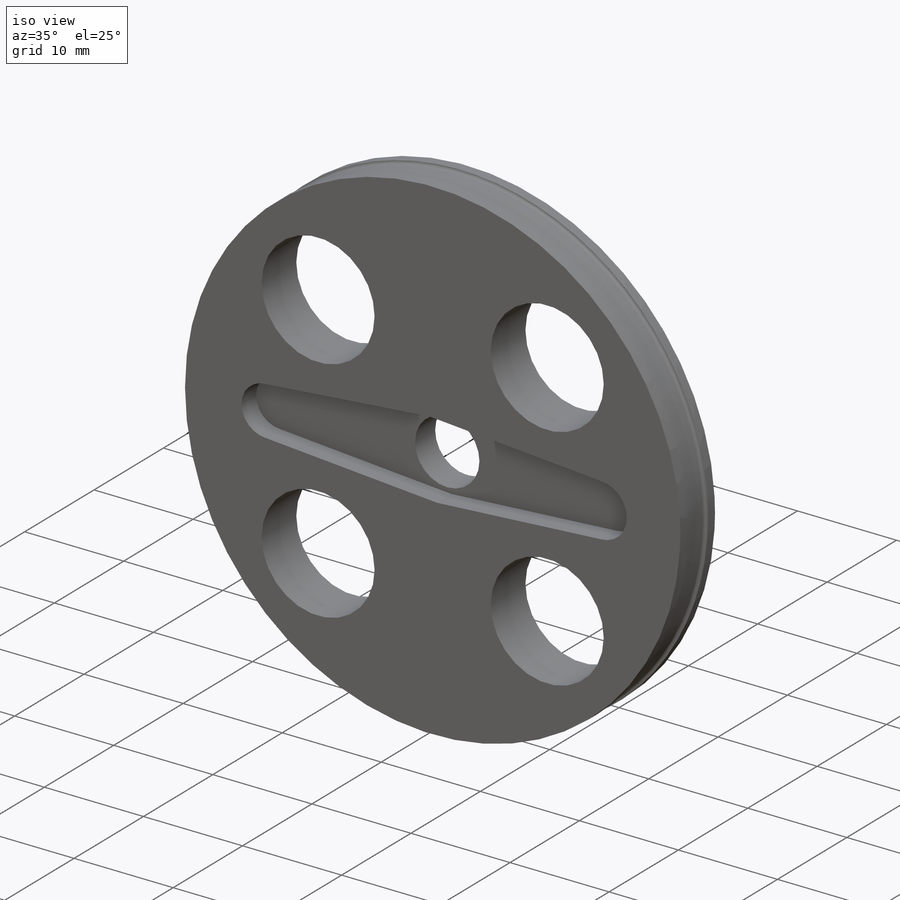
[diagram: iso view]
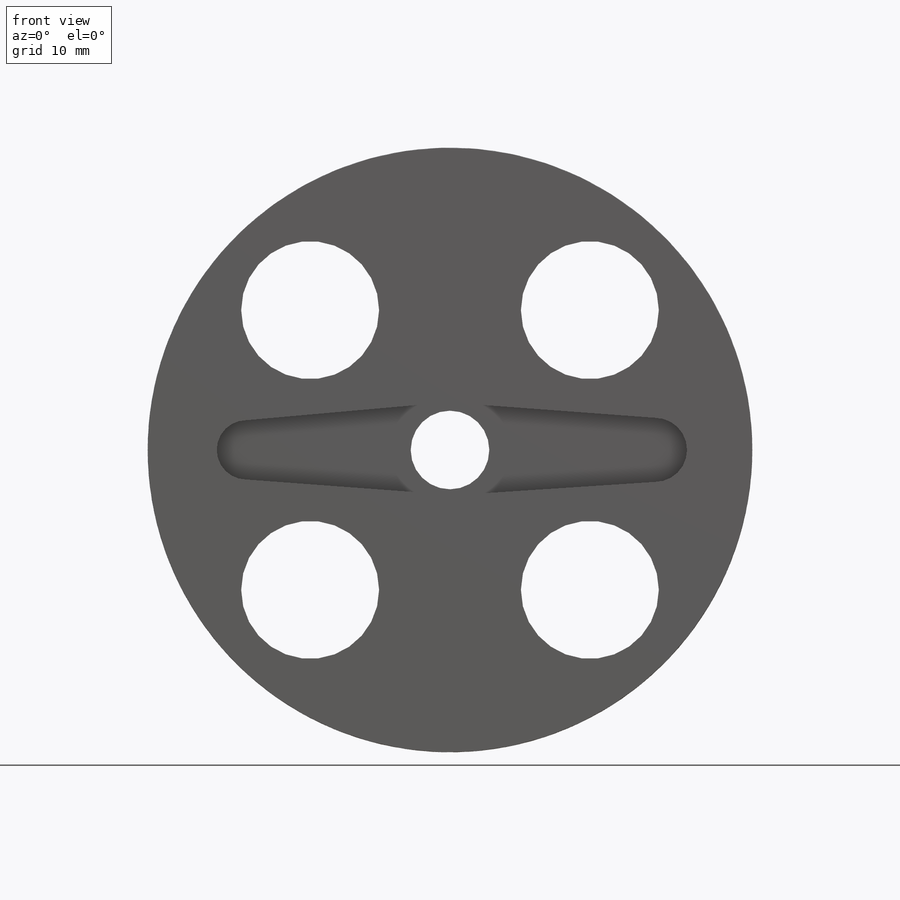
[diagram: front view]
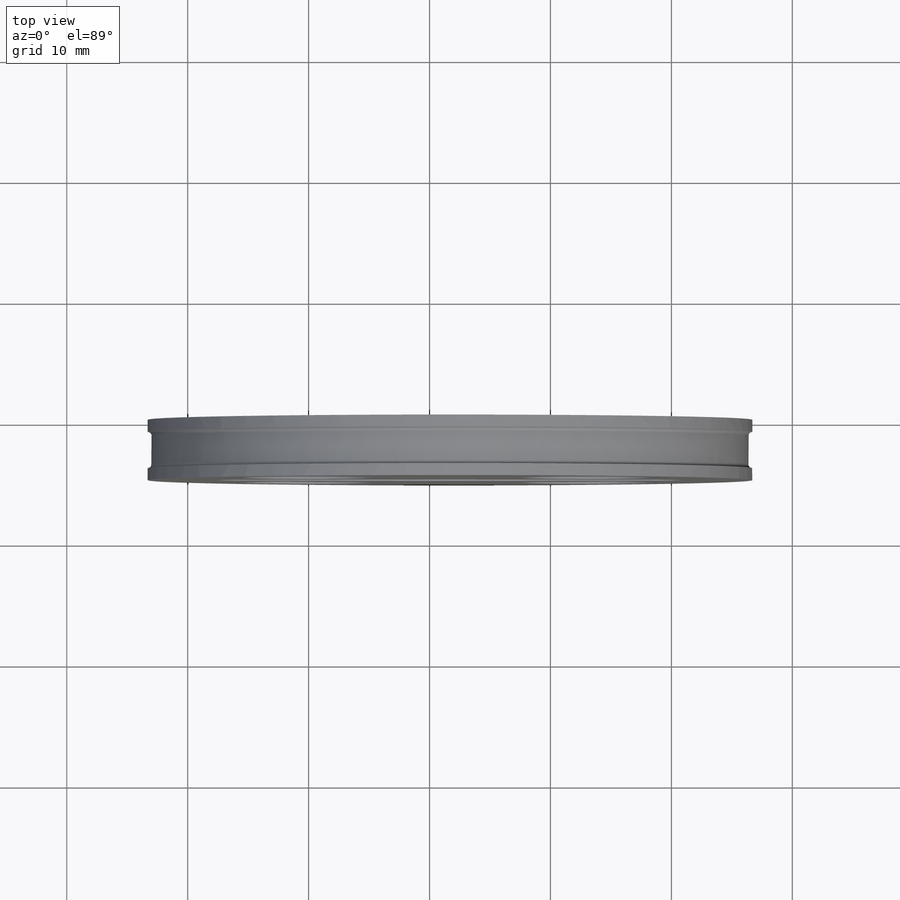
[diagram: top view]
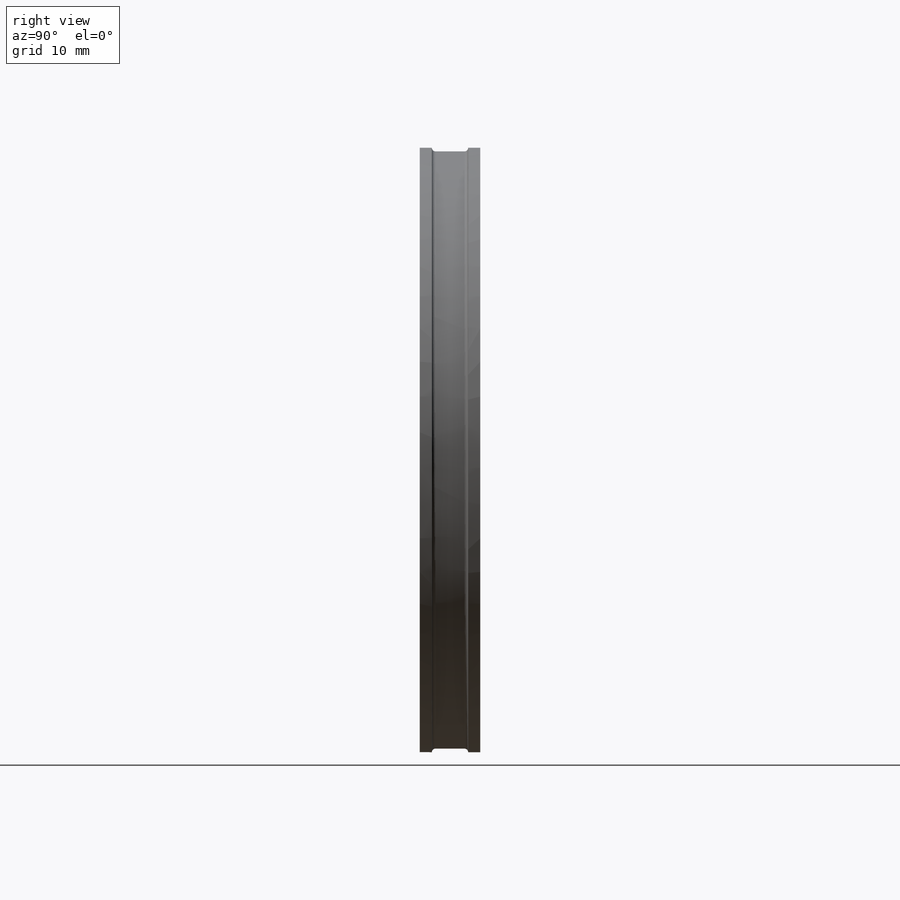
[diagram: right view]
SOLIDWORKS PART (.sldprt)
format: sldprt  version: not decoded by parser v0  size: 268,288 bytes
history: native  units: mm
features: sketch x7, cut_extrude x3, material x1, extrude x1, plane x1, cut_revolve x1, fillet x1 (+11 scaffold rows collapsed)
feature tree (26):
  scaffold x11  (default folders/planes/origin — collapsed)
  material  "Material <not specified>"
  sketch  "Sketch1"  dims[D1=50.0mm]
  extrude  "Boss-Extrude1"  Depth=5mm
  sketch  "Sketch9"
  sketch  "Sketch10"
  plane  "Plane1"
  sketch  "Sketch12"  dims[D1=1.5mm D2=1.5mm D3=0.3mm]
  cut_revolve  "Cut-Revolve1"  Angle=360deg
  fillet  "Fillet1"  Radius=0.3mm
  sketch  "Sketch13"  dims[c1.D3=5.3mm c1.D1=38.0mm c1.D2=7.7mm c2.D1=~33.781826mm]
  cut_extrude  "Cut-Extrude1"  Depth=2.1mm
  sketch  "Sketch15"  dims[D1=6.5mm]
  cut_extrude  "Cut-Extrude2"  Depth=10.1mm
  sketch  "Sketch18"  dims[c1.D1=~16.356107mm c2.D1=45.0deg c2.D2=4.0]
  cut_extrude  "Cut-Extrude4"  Depth=10.1mm
decode coverage: 11 of 13 modeling features carry decoded parameters
note: ~ marks probable driven/reference dimensions
note: suppression state not decoded; provenance and decode notes live in map.json
